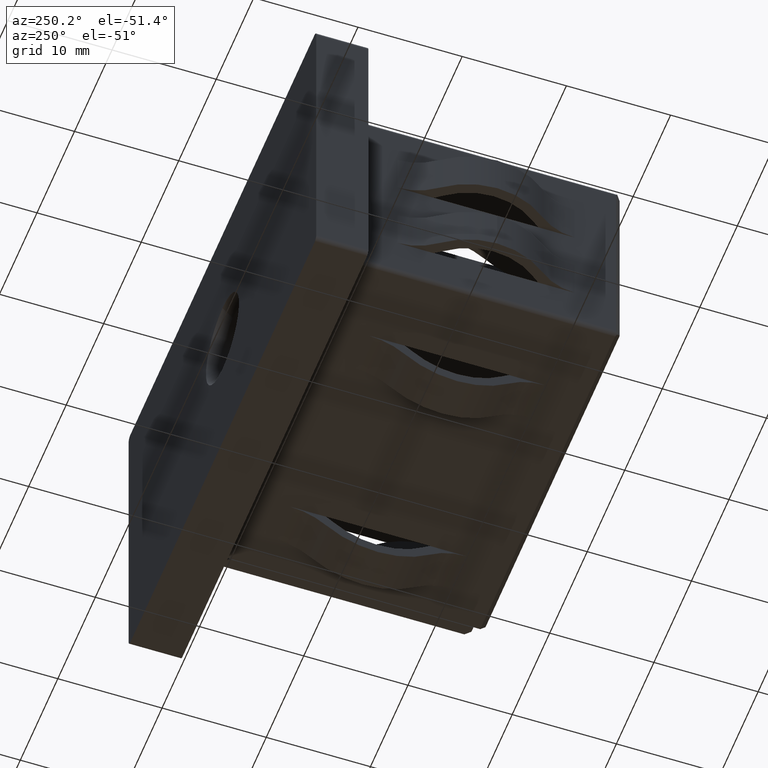
[diagram: clean part render]
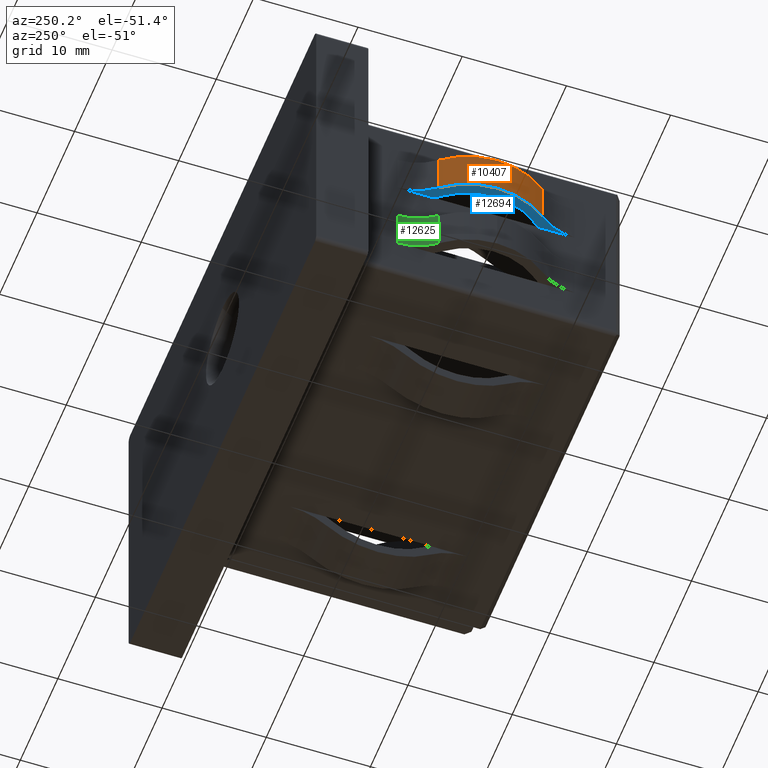
[diagram: same view with three faces highlighted in distinct colors, each labeled with its STEP entity id]
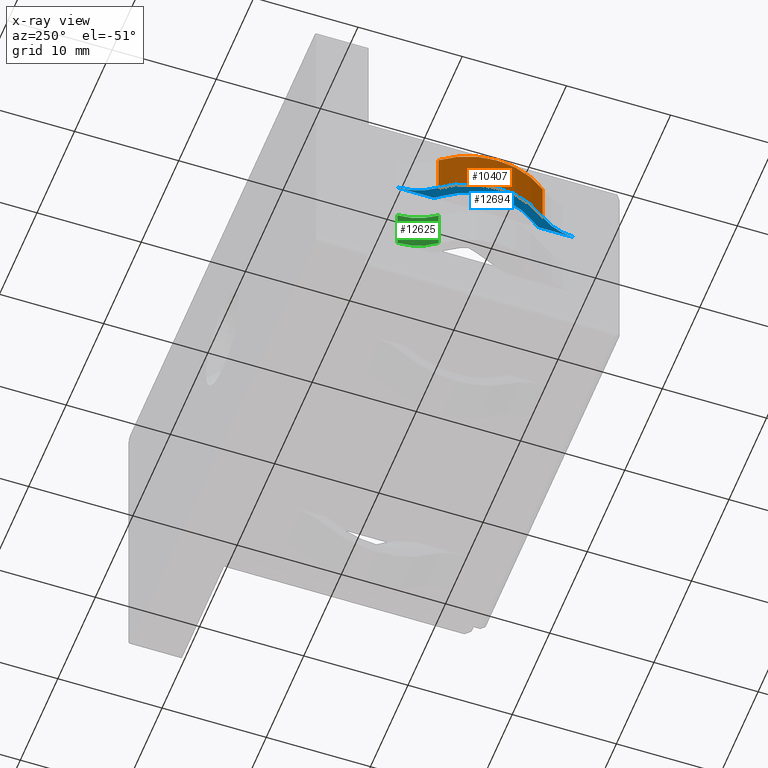
[diagram: x-ray of the same camera — body ghosted, the three highlighted faces saturated]
A machine part, auxiliary view with three faces highlighted in distinct colors.
The next image is the same camera in x-ray (body ghosted, the three faces saturated) — at least one of them is partly hidden behind the body in this view.
Their STEP definitions:

[orange] entity #10407 — the highlighted cylindrical surface (partial cylindrical patch) has radius 7.9657 mm, axis along (0, -0, 1).
#12 = EDGE_CURVE ( 'NONE', #3082, #803, #17932, .T. ) ;
#31 = DIRECTION ( 'NONE',  ( 1.000000000000000000, 0.0000000000000000000, -5.444362947651688600E-017 ) ) ;
#350 = VERTEX_POINT ( 'NONE', #12689 ) ;
#655 = CIRCLE ( 'NONE', #15727, 7.965686218279420100 ) ;
#803 = VERTEX_POINT ( 'NONE', #15324 ) ;
#1478 = CARTESIAN_POINT ( 'NONE',  ( -15.28431378171577400, -12.99999999999999800, 2.000000000000000900 ) ) ;
#1583 = DIRECTION ( 'NONE',  ( 6.424901762877059800E-017, -0.0000000000000000000, 1.000000000000000000 ) ) ;
#2512 = CYLINDRICAL_SURFACE ( 'NONE', #15725, 7.965686218279420100 ) ;
#3082 = VERTEX_POINT ( 'NONE', #9169 ) ;
#3275 = ORIENTED_EDGE ( 'NONE', *, *, #12727, .T. ) ;
#3786 = CARTESIAN_POINT ( 'NONE',  ( -15.28431378171577400, -12.99999999999999800, 2.000000000000000900 ) ) ;
#3984 = EDGE_LOOP ( 'NONE', ( #10561, #6488, #18110, #3275 ) ) ;
#4183 = DIRECTION ( 'NONE',  ( 6.345874637942568800E-017, -0.0000000000000000000, 1.000000000000000000 ) ) ;
#4881 = DIRECTION ( 'NONE',  ( -1.000000000000000000, 0.0000000000000000000, 1.088872589530337700E-016 ) ) ;
#5783 = DIRECTION ( 'NONE',  ( -1.000000000000000000, 0.0000000000000000000, 5.444362947651688600E-017 ) ) ;
#6488 = ORIENTED_EDGE ( 'NONE', *, *, #12, .F. ) ;
#6862 = DIRECTION ( 'NONE',  ( 6.424901762877059800E-017, -0.0000000000000000000, 1.000000000000000000 ) ) ;
#7800 = FACE_OUTER_BOUND ( 'NONE', #3984, .T. ) ;
#7835 = EDGE_CURVE ( 'NONE', #803, #350, #655, .T. ) ;
#7985 = LINE ( 'NONE', #10849, #13902 ) ;
#8687 = VECTOR ( 'NONE', #1583, 1000.000000000000000 ) ;
#9169 = CARTESIAN_POINT ( 'NONE',  ( -21.48529410163993000, -7.999999999999996400, 2.000000000000001800 ) ) ;
#9973 = CARTESIAN_POINT ( 'NONE',  ( -21.48529410163993300, -17.99999999999999300, 2.000000000000000900 ) ) ;
#10407 = ADVANCED_FACE ( 'NONE', ( #7800 ), #2512, .T. ) ;
#10561 = ORIENTED_EDGE ( 'NONE', *, *, #7835, .F. ) ;
#10849 = CARTESIAN_POINT ( 'NONE',  ( -21.48529410163993300, -17.99999999999999300, 2.000000000000000900 ) ) ;
#12689 = CARTESIAN_POINT ( 'NONE',  ( -21.48529410163993300, -17.99999999999999300, 6.000000000000000900 ) ) ;
#12727 = EDGE_CURVE ( 'NONE', #16531, #350, #7985, .T. ) ;
#13216 = CIRCLE ( 'NONE', #15165, 7.965686218279420100 ) ;
#13258 = EDGE_CURVE ( 'NONE', #3082, #16531, #13216, .T. ) ;
#13902 = VECTOR ( 'NONE', #15154, 1000.000000000000000 ) ;
#14788 = CARTESIAN_POINT ( 'NONE',  ( -15.28431378171577400, -12.99999999999999800, 6.000000000000000900 ) ) ;
#15154 = DIRECTION ( 'NONE',  ( 6.424901762877059800E-017, -0.0000000000000000000, 1.000000000000000000 ) ) ;
#15165 = AXIS2_PLACEMENT_3D ( 'NONE', #1478, #4183, #5783 ) ;
#15324 = CARTESIAN_POINT ( 'NONE',  ( -21.48529410163993000, -7.999999999999996400, 6.000000000000001800 ) ) ;
#15718 = CARTESIAN_POINT ( 'NONE',  ( -21.48529410163993000, -7.999999999999996400, 2.000000000000001800 ) ) ;
#15725 = AXIS2_PLACEMENT_3D ( 'NONE', #3786, #6862, #31 ) ;
#15727 = AXIS2_PLACEMENT_3D ( 'NONE', #14788, #16023, #4881 ) ;
#16023 = DIRECTION ( 'NONE',  ( 6.345874637942568800E-017, -0.0000000000000000000, 1.000000000000000000 ) ) ;
#16531 = VERTEX_POINT ( 'NONE', #9973 ) ;
#17932 = LINE ( 'NONE', #15718, #8687 ) ;
#18110 = ORIENTED_EDGE ( 'NONE', *, *, #13258, .T. ) ;

[blue] entity #12694 — the highlighted planar face has unit normal (-0, 0, -1).
#8 = LINE ( 'NONE', #575, #16320 ) ;
#260 = FACE_OUTER_BOUND ( 'NONE', #6854, .T. ) ;
#575 = CARTESIAN_POINT ( 'NONE',  ( -20.24999999999999600, -26.00000000000000000, 2.000000000000001800 ) ) ;
#948 = ORIENTED_EDGE ( 'NONE', *, *, #10733, .F. ) ;
#1340 = EDGE_CURVE ( 'NONE', #16531, #13899, #9909, .T. ) ;
#1395 = DIRECTION ( 'NONE',  ( -1.000000000000000000, 0.0000000000000000000, 6.594923552477268900E-017 ) ) ;
#1478 = CARTESIAN_POINT ( 'NONE',  ( -15.28431378171577400, -12.99999999999999800, 2.000000000000000900 ) ) ;
#1686 = EDGE_CURVE ( 'NONE', #17103, #17501, #14963, .T. ) ;
#1955 = CARTESIAN_POINT ( 'NONE',  ( -20.24999999999999600, -26.00000000000000000, 2.000000000000001800 ) ) ;
#2070 = CIRCLE ( 'NONE', #15912, 6.575980229995191300 ) ;
#2241 = CARTESIAN_POINT ( 'NONE',  ( -20.24999999999759500, -21.49999992292214700, 2.000000000000000900 ) ) ;
#2362 = DIRECTION ( 'NONE',  ( -6.345874637942568800E-017, 0.0000000000000000000, -1.000000000000000000 ) ) ;
#3034 = AXIS2_PLACEMENT_3D ( 'NONE', #18117, #16666, #1395 ) ;
#3082 = VERTEX_POINT ( 'NONE', #9169 ) ;
#3131 = CIRCLE ( 'NONE', #11739, 5.575980229999999000 ) ;
#4060 = DIRECTION ( 'NONE',  ( 6.345874637942568800E-017, -0.0000000000000000000, 1.000000000000000000 ) ) ;
#4183 = DIRECTION ( 'NONE',  ( 6.345874637942568800E-017, -0.0000000000000000000, 1.000000000000000000 ) ) ;
#4559 = VERTEX_POINT ( 'NONE', #11600 ) ;
#4617 = AXIS2_PLACEMENT_3D ( 'NONE', #12908, #4060, #16812 ) ;
#4777 = AXIS2_PLACEMENT_3D ( 'NONE', #5438, #2362, #15211 ) ;
#4902 = ORIENTED_EDGE ( 'NONE', *, *, #1686, .T. ) ;
#5106 = EDGE_CURVE ( 'NONE', #15191, #5789, #2070, .T. ) ;
#5423 = CARTESIAN_POINT ( 'NONE',  ( -20.24999999999999600, -18.01403370679349400, 2.000000000000001300 ) ) ;
#5438 = CARTESIAN_POINT ( 'NONE',  ( 1.253369502601615600E-016, 0.0000000000000000000, 2.000000000000000000 ) ) ;
#5783 = DIRECTION ( 'NONE',  ( -1.000000000000000000, 0.0000000000000000000, 5.444362947651688600E-017 ) ) ;
#5789 = VERTEX_POINT ( 'NONE', #5423 ) ;
#5817 = EDGE_CURVE ( 'NONE', #17501, #15191, #15687, .T. ) ;
#6021 = DIRECTION ( 'NONE',  ( -6.345874637942568800E-017, 0.0000000000000000000, -1.000000000000000000 ) ) ;
#6206 = AXIS2_PLACEMENT_3D ( 'NONE', #12903, #6021, #13082 ) ;
#6250 = ORIENTED_EDGE ( 'NONE', *, *, #13258, .F. ) ;
#6479 = CARTESIAN_POINT ( 'NONE',  ( -25.82598022999519600, -4.500000077077848100, 2.000000000000001800 ) ) ;
#6544 = ORIENTED_EDGE ( 'NONE', *, *, #12566, .F. ) ;
#6854 = EDGE_LOOP ( 'NONE', ( #12787, #13915, #6250, #6544, #948, #4902, #12713, #10553 ) ) ;
#7865 = EDGE_CURVE ( 'NONE', #13899, #5789, #8, .T. ) ;
#8482 = VECTOR ( 'NONE', #11856, 1000.000000000000000 ) ;
#8825 = DIRECTION ( 'NONE',  ( -6.345874637942568800E-017, 0.0000000000000000000, -1.000000000000000000 ) ) ;
#8890 = DIRECTION ( 'NONE',  ( -1.000000000000000000, 0.0000000000000000000, 6.594923552477268900E-017 ) ) ;
#9169 = CARTESIAN_POINT ( 'NONE',  ( -21.48529410163993000, -7.999999999999996400, 2.000000000000001800 ) ) ;
#9563 = LINE ( 'NONE', #1955, #8482 ) ;
#9909 = CIRCLE ( 'NONE', #6206, 5.575980229999999000 ) ;
#9973 = CARTESIAN_POINT ( 'NONE',  ( -21.48529410163993300, -17.99999999999999300, 2.000000000000000900 ) ) ;
#10187 = CARTESIAN_POINT ( 'NONE',  ( -20.70683256675489800, -8.627692312120210300, 2.000000000000001800 ) ) ;
#10427 = DIRECTION ( 'NONE',  ( 0.0000000000000000000, 1.000000000000000000, 0.0000000000000000000 ) ) ;
#10553 = ORIENTED_EDGE ( 'NONE', *, *, #5106, .T. ) ;
#10733 = EDGE_CURVE ( 'NONE', #17103, #4559, #9563, .T. ) ;
#11600 = CARTESIAN_POINT ( 'NONE',  ( -20.24999999999999600, -4.499999999999997300, 2.000000000000000000 ) ) ;
#11739 = AXIS2_PLACEMENT_3D ( 'NONE', #6479, #13307, #16282 ) ;
#11856 = DIRECTION ( 'NONE',  ( 0.0000000000000000000, 1.000000000000000000, 0.0000000000000000000 ) ) ;
#12566 = EDGE_CURVE ( 'NONE', #4559, #3082, #3131, .T. ) ;
#12694 = ADVANCED_FACE ( 'NONE', ( #260 ), #13866, .T. ) ;
#12713 = ORIENTED_EDGE ( 'NONE', *, *, #5817, .T. ) ;
#12787 = ORIENTED_EDGE ( 'NONE', *, *, #7865, .F. ) ;
#12903 = CARTESIAN_POINT ( 'NONE',  ( -25.82598022999519600, -21.49999992292214700, 2.000000000000001800 ) ) ;
#12908 = CARTESIAN_POINT ( 'NONE',  ( -15.28431378171577400, -12.99999999999999800, 2.000000000000000900 ) ) ;
#13082 = DIRECTION ( 'NONE',  ( -1.000000000000000000, 0.0000000000000000000, 7.777661525069680000E-017 ) ) ;
#13216 = CIRCLE ( 'NONE', #15165, 7.965686218279420100 ) ;
#13258 = EDGE_CURVE ( 'NONE', #3082, #16531, #13216, .T. ) ;
#13307 = DIRECTION ( 'NONE',  ( -6.345874637942568800E-017, 0.0000000000000000000, -1.000000000000000000 ) ) ;
#13866 = PLANE ( 'NONE',  #4777 ) ;
#13899 = VERTEX_POINT ( 'NONE', #2241 ) ;
#13915 = ORIENTED_EDGE ( 'NONE', *, *, #1340, .F. ) ;
#14963 = CIRCLE ( 'NONE', #3034, 6.575980229995191300 ) ;
#15165 = AXIS2_PLACEMENT_3D ( 'NONE', #1478, #4183, #5783 ) ;
#15191 = VERTEX_POINT ( 'NONE', #16908 ) ;
#15211 = DIRECTION ( 'NONE',  ( -1.000000000000000000, 0.0000000000000000000, 6.345874637942568800E-017 ) ) ;
#15687 = CIRCLE ( 'NONE', #4617, 6.965686218284227800 ) ;
#15844 = CARTESIAN_POINT ( 'NONE',  ( -25.82598022999519600, -21.49999992292214700, 2.000000000000001800 ) ) ;
#15912 = AXIS2_PLACEMENT_3D ( 'NONE', #15844, #8825, #8890 ) ;
#16282 = DIRECTION ( 'NONE',  ( -1.000000000000000000, 0.0000000000000000000, 7.777661525069680000E-017 ) ) ;
#16320 = VECTOR ( 'NONE', #10427, 1000.000000000000000 ) ;
#16531 = VERTEX_POINT ( 'NONE', #9973 ) ;
#16666 = DIRECTION ( 'NONE',  ( -6.345874637942568800E-017, 0.0000000000000000000, -1.000000000000000000 ) ) ;
#16812 = DIRECTION ( 'NONE',  ( -1.000000000000000000, 0.0000000000000000000, 6.225960449608439000E-017 ) ) ;
#16908 = CARTESIAN_POINT ( 'NONE',  ( -20.70683256675490100, -17.37230768787977900, 2.000000000000000900 ) ) ;
#17103 = VERTEX_POINT ( 'NONE', #17312 ) ;
#17312 = CARTESIAN_POINT ( 'NONE',  ( -20.24999999999999600, -7.985966293206501200, 2.000000000000001300 ) ) ;
#17501 = VERTEX_POINT ( 'NONE', #10187 ) ;
#18117 = CARTESIAN_POINT ( 'NONE',  ( -25.82598022999519600, -4.500000077077848100, 2.000000000000001800 ) ) ;

[green] entity #12625 — the highlighted cylindrical surface (partial cylindrical patch) has radius 5.576 mm, axis along (-0, -0, -1).
#373 = EDGE_CURVE ( 'NONE', #10411, #1864, #13062, .T. ) ;
#695 = DIRECTION ( 'NONE',  ( -6.424901762877059800E-017, -0.0000000000000000000, -1.000000000000000000 ) ) ;
#817 = CARTESIAN_POINT ( 'NONE',  ( -25.82598022999519600, -4.500000077077848100, -1.999999999999998200 ) ) ;
#1150 = CYLINDRICAL_SURFACE ( 'NONE', #8913, 5.575980229999999000 ) ;
#1321 = CARTESIAN_POINT ( 'NONE',  ( -25.82598022999519600, -4.500000077077848100, -5.999999999999998200 ) ) ;
#1585 = VECTOR ( 'NONE', #3875, 1000.000000000000000 ) ;
#1631 = ORIENTED_EDGE ( 'NONE', *, *, #4366, .F. ) ;
#1864 = VERTEX_POINT ( 'NONE', #7408 ) ;
#2811 = DIRECTION ( 'NONE',  ( -1.000000000000000000, 0.0000000000000000000, 7.777661525069680000E-017 ) ) ;
#3875 = DIRECTION ( 'NONE',  ( -6.424901762877059800E-017, -0.0000000000000000000, -1.000000000000000000 ) ) ;
#3969 = CARTESIAN_POINT ( 'NONE',  ( -25.82598022999519600, -4.500000077077848100, -1.999999999999998200 ) ) ;
#4026 = ORIENTED_EDGE ( 'NONE', *, *, #373, .T. ) ;
#4113 = AXIS2_PLACEMENT_3D ( 'NONE', #3969, #18055, #2811 ) ;
#4317 = CARTESIAN_POINT ( 'NONE',  ( -20.24999999999759500, -4.500000077077848100, -1.999999999999998700 ) ) ;
#4366 = EDGE_CURVE ( 'NONE', #11640, #4718, #14199, .T. ) ;
#4718 = VERTEX_POINT ( 'NONE', #15972 ) ;
#6673 = AXIS2_PLACEMENT_3D ( 'NONE', #1321, #14109, #15518 ) ;
#7408 = CARTESIAN_POINT ( 'NONE',  ( -21.48529410163993000, -7.999999999999996400, -5.999999999999999100 ) ) ;
#8080 = CARTESIAN_POINT ( 'NONE',  ( -21.48529410163993000, -7.999999999999996400, -1.999999999999999100 ) ) ;
#8366 = ORIENTED_EDGE ( 'NONE', *, *, #9830, .T. ) ;
#8908 = ORIENTED_EDGE ( 'NONE', *, *, #13204, .F. ) ;
#8913 = AXIS2_PLACEMENT_3D ( 'NONE', #817, #695, #11890 ) ;
#9512 = LINE ( 'NONE', #8080, #1585 ) ;
#9830 = EDGE_CURVE ( 'NONE', #11640, #10411, #11777, .T. ) ;
#10272 = CARTESIAN_POINT ( 'NONE',  ( -20.24999999999519700, -4.499999999999995600, -1.999999999999998200 ) ) ;
#10411 = VERTEX_POINT ( 'NONE', #14065 ) ;
#10504 = DIRECTION ( 'NONE',  ( -6.424901762877059800E-017, -0.0000000000000000000, -1.000000000000000000 ) ) ;
#11640 = VERTEX_POINT ( 'NONE', #4317 ) ;
#11777 = LINE ( 'NONE', #10272, #14633 ) ;
#11890 = DIRECTION ( 'NONE',  ( -1.000000000000000000, 0.0000000000000000000, 7.777661525069680000E-017 ) ) ;
#12625 = ADVANCED_FACE ( 'NONE', ( #15674 ), #1150, .F. ) ;
#13062 = CIRCLE ( 'NONE', #6673, 5.575980229999999000 ) ;
#13090 = EDGE_LOOP ( 'NONE', ( #4026, #8908, #1631, #8366 ) ) ;
#13204 = EDGE_CURVE ( 'NONE', #4718, #1864, #9512, .T. ) ;
#14065 = CARTESIAN_POINT ( 'NONE',  ( -20.24999999999999600, -4.499999999999997300, -5.999999999999998200 ) ) ;
#14109 = DIRECTION ( 'NONE',  ( -6.503928887811550800E-017, -0.0000000000000000000, -1.000000000000000000 ) ) ;
#14199 = CIRCLE ( 'NONE', #4113, 5.575980229999999000 ) ;
#14633 = VECTOR ( 'NONE', #10504, 1000.000000000000000 ) ;
#15518 = DIRECTION ( 'NONE',  ( -1.000000000000000000, 0.0000000000000000000, 0.0000000000000000000 ) ) ;
#15674 = FACE_OUTER_BOUND ( 'NONE', #13090, .T. ) ;
#15972 = CARTESIAN_POINT ( 'NONE',  ( -21.48529410163993000, -7.999999999999996400, -1.999999999999999100 ) ) ;
#18055 = DIRECTION ( 'NONE',  ( -6.503928887811550800E-017, -0.0000000000000000000, -1.000000000000000000 ) ) ;